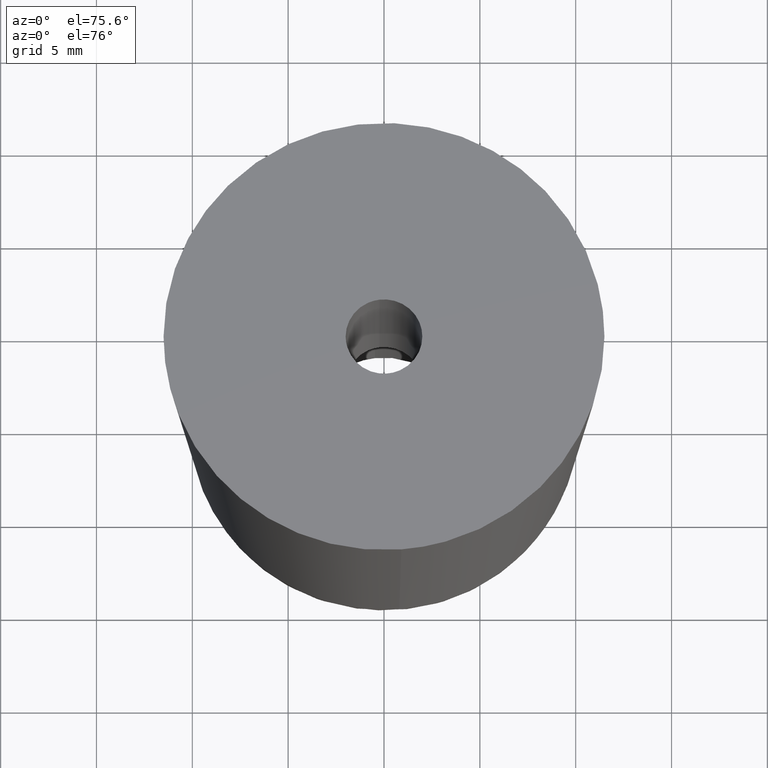
[diagram: clean part render]
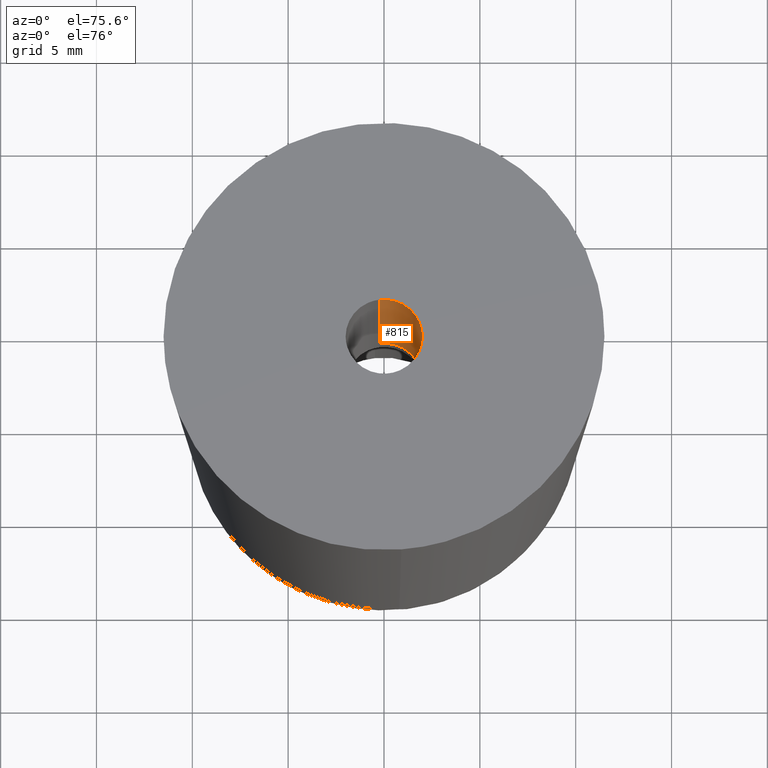
[diagram: same view with one face highlighted and labeled with its STEP entity id]
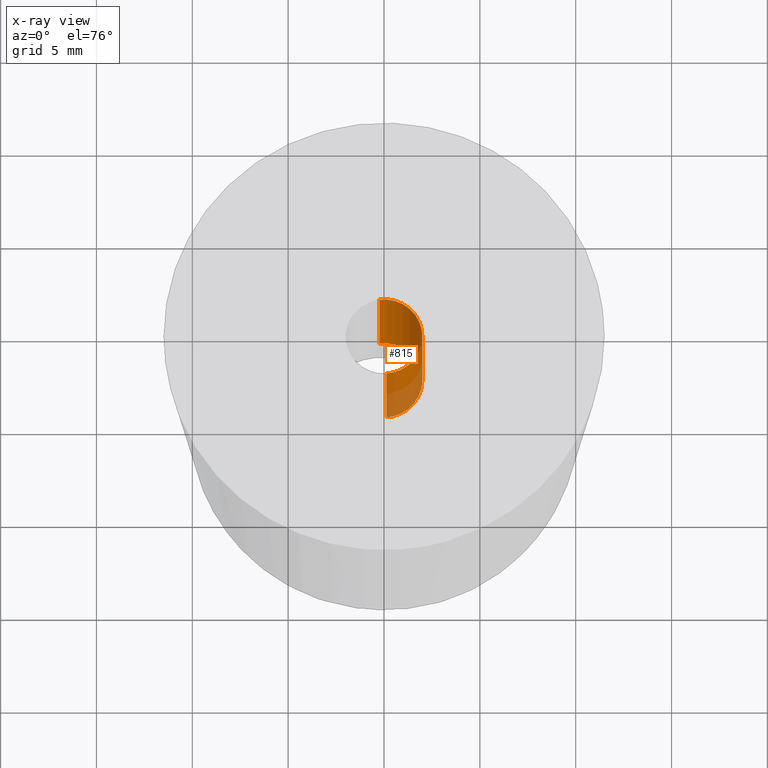
[diagram: x-ray of the same camera — body ghosted, the highlighted face saturated]
A machine part, auxiliary view. The second image highlights one B-rep face of the part: STEP entity #815.
The next image is the same camera in x-ray: the body ghosted, the highlighted face saturated — about 25% of this face is hidden behind the body in this view.
In plain terms, the highlighted face is a freeform B-spline surface patch.
Its self-contained STEP definition (entity closure, byte-faithful):
#713=CARTESIAN_POINT('',(-0.236068469313517,1.986019052727332,20.230000000000015));
#714=CARTESIAN_POINT('',(-0.179229457275955,1.992775230897211,20.230000000000008));
#715=CARTESIAN_POINT('',(-0.122097079069714,1.996269596843733,20.230000000000011));
#716=CARTESIAN_POINT('',(1.874172517774020,2.118366675913447,20.230000000000004));
#717=CARTESIAN_POINT('',(1.996269596843733,0.122097079069714,20.230000000000011));
#718=CARTESIAN_POINT('',(2.118366675913447,-1.874172517774020,20.230000000000004));
#719=CARTESIAN_POINT('',(0.122097079069714,-1.996269596843733,20.230000000000011));
#720=CARTESIAN_POINT('',(-0.236068469313517,1.986019052727332,10.564249999999797));
#721=CARTESIAN_POINT('',(-0.179229457275955,1.992775230897211,10.564249999999799));
#722=CARTESIAN_POINT('',(-0.122097079069714,1.996269596843733,10.564249999999790));
#723=CARTESIAN_POINT('',(1.874172517774020,2.118366675913447,10.564249999999793));
#724=CARTESIAN_POINT('',(1.996269596843733,0.122097079069714,10.564249999999790));
#725=CARTESIAN_POINT('',(2.118366675913447,-1.874172517774020,10.564249999999793));
#726=CARTESIAN_POINT('',(0.122097079069714,-1.996269596843733,10.564249999999790));
#734=(BOUNDED_SURFACE()B_SPLINE_SURFACE(2,1,((#713,#720),(#714,#721),(#715,#722),(#716,#723),(#717,#724),(#718,#725),(#719,#726)),.UNSPECIFIED.,.F.,.F.,.U.)B_SPLINE_SURFACE_WITH_KNOTS((3,2,2,3),(2,2),(0.0,0.132548339959391,3.446256838944149,6.759965337928908),(0.0,9.665750000000216),.UNSPECIFIED.)GEOMETRIC_REPRESENTATION_ITEM()RATIONAL_B_SPLINE_SURFACE(((0.977505800795127,0.977505800795127),(0.988284271247462,0.988284271247462),(1.0,1.0),(0.707106781186548,0.707106781186548),(1.0,1.0),(0.707106781186548,0.707106781186548),(1.0,1.0)))REPRESENTATION_ITEM('')SURFACE());
#735=CARTESIAN_POINT('',(-0.236065886624471,1.986019359715669,20.000000000000011));
#736=VERTEX_POINT('',#735);
#737=CARTESIAN_POINT('',(2.0,0.0,20.0));
#738=VERTEX_POINT('',#737);
#739=CARTESIAN_POINT('',(-0.236065886624471,1.986019359715669,20.000000000000014));
#740=CARTESIAN_POINT('',(-0.118446934307620,2.000000000000000,19.999999999999996));
#741=CARTESIAN_POINT('',(0.0,2.0,20.0));
#742=CARTESIAN_POINT('',(2.000000000000000,2.000000000000000,19.999999999999996));
#743=CARTESIAN_POINT('',(2.0,0.0,20.0));
#751=(BOUNDED_CURVE()B_SPLINE_CURVE(2,(#739,#740,#741,#742,#743),.UNSPECIFIED.,.F.,.U.)B_SPLINE_CURVE_WITH_KNOTS((3,2,3),(0.229562693293432,0.250000000000000,0.500000000000000),.UNSPECIFIED.)CURVE()GEOMETRIC_REPRESENTATION_ITEM()RATIONAL_B_SPLINE_CURVE((0.956027184961797,0.976056205819342,1.0,0.707106781186548,1.0))REPRESENTATION_ITEM(''));
#752=EDGE_CURVE('',#736,#738,#751,.T.);
#753=ORIENTED_EDGE('',*,*,#752,.F.);
#754=CARTESIAN_POINT('',(-0.236065917800784,1.986019356009974,10.799999999999800));
#755=VERTEX_POINT('',#754);
#756=CARTESIAN_POINT('',(-0.236065886624471,1.986019359715669,20.000000000000011));
#757=CARTESIAN_POINT('',(-0.236065917800784,1.986019356009974,10.799999999999800));
#758=QUASI_UNIFORM_CURVE('',1,(#756,#757),.UNSPECIFIED.,.F.,.U.);
#759=EDGE_CURVE('',#736,#755,#758,.T.);
#760=ORIENTED_EDGE('',*,*,#759,.T.);
#761=CARTESIAN_POINT('',(2.0,0.0,10.799999999999800));
#762=VERTEX_POINT('',#761);
#763=CARTESIAN_POINT('',(-0.236065917800784,1.986019356009974,10.799999999999798));
#764=CARTESIAN_POINT('',(-0.118446950060566,2.0,10.799999999999804));
#765=CARTESIAN_POINT('',(0.0,2.0,10.799999999999800));
#766=CARTESIAN_POINT('',(2.000000000000000,2.000000000000000,10.799999999999800));
#767=CARTESIAN_POINT('',(2.0,0.0,10.799999999999800));
#775=(BOUNDED_CURVE()B_SPLINE_CURVE(2,(#763,#764,#765,#766,#767),.UNSPECIFIED.,.F.,.U.)B_SPLINE_CURVE_WITH_KNOTS((3,2,3),(0.229562690640437,0.250000000000000,0.500000000000000),.UNSPECIFIED.)CURVE()GEOMETRIC_REPRESENTATION_ITEM()RATIONAL_B_SPLINE_CURVE((0.956027179761807,0.976056202711165,1.0,0.707106781186548,1.0))REPRESENTATION_ITEM(''));
#776=EDGE_CURVE('',#755,#762,#775,.T.);
#777=ORIENTED_EDGE('',*,*,#776,.T.);
#778=CARTESIAN_POINT('',(0.122097079102479,-1.996269596841730,10.799999999999800));
#779=VERTEX_POINT('',#778);
#780=CARTESIAN_POINT('',(2.0,0.0,10.799999999999800));
#781=CARTESIAN_POINT('',(2.000000000000000,-1.881412133749522,10.799999999999800));
#782=CARTESIAN_POINT('',(0.122097079102479,-1.996269596841730,10.799999999999802));
#790=(BOUNDED_CURVE()B_SPLINE_CURVE(2,(#780,#781,#782),.UNSPECIFIED.,.F.,.U.)B_SPLINE_CURVE_WITH_KNOTS((3,3),(0.500000000000000,0.739332962236305),.UNSPECIFIED.)CURVE()GEOMETRIC_REPRESENTATION_ITEM()RATIONAL_B_SPLINE_CURVE((1.0,0.719603993289801,0.976072041661064))REPRESENTATION_ITEM(''));
#791=EDGE_CURVE('',#762,#779,#790,.T.);
#792=ORIENTED_EDGE('',*,*,#791,.T.);
#793=CARTESIAN_POINT('',(0.122097079102479,-1.996269596841730,20.0));
#794=VERTEX_POINT('',#793);
#795=CARTESIAN_POINT('',(0.122097079102479,-1.996269596841730,20.0));
#796=CARTESIAN_POINT('',(0.122097079102479,-1.996269596841730,10.799999999999800));
#797=QUASI_UNIFORM_CURVE('',1,(#795,#796),.UNSPECIFIED.,.F.,.U.);
#798=EDGE_CURVE('',#794,#779,#797,.T.);
#799=ORIENTED_EDGE('',*,*,#798,.F.);
#800=CARTESIAN_POINT('',(2.0,0.0,20.0));
#801=CARTESIAN_POINT('',(2.000000000000000,-1.881412133749522,20.000000000000007));
#802=CARTESIAN_POINT('',(0.122097079102479,-1.996269596841730,19.999999999999996));
#810=(BOUNDED_CURVE()B_SPLINE_CURVE(2,(#800,#801,#802),.UNSPECIFIED.,.F.,.U.)B_SPLINE_CURVE_WITH_KNOTS((3,3),(0.500000000000000,0.739332962236305),.UNSPECIFIED.)CURVE()GEOMETRIC_REPRESENTATION_ITEM()RATIONAL_B_SPLINE_CURVE((1.0,0.719603993289801,0.976072041661064))REPRESENTATION_ITEM(''));
#811=EDGE_CURVE('',#738,#794,#810,.T.);
#812=ORIENTED_EDGE('',*,*,#811,.F.);
#813=EDGE_LOOP('',(#753,#760,#777,#792,#799,#812));
#814=FACE_OUTER_BOUND('',#813,.T.);
#815=ADVANCED_FACE('',(#814),#734,.F.);